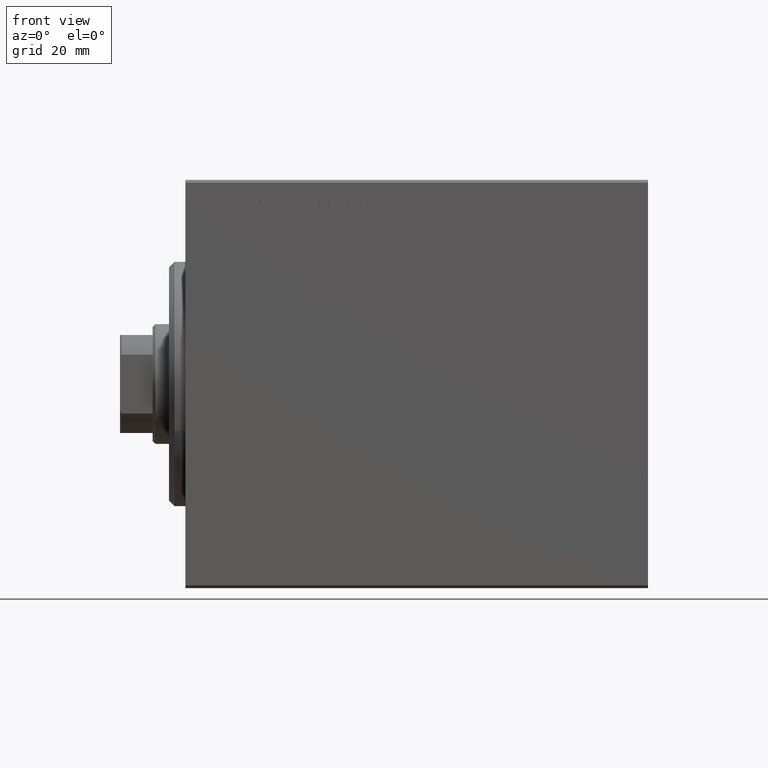
[diagram: clean part render]
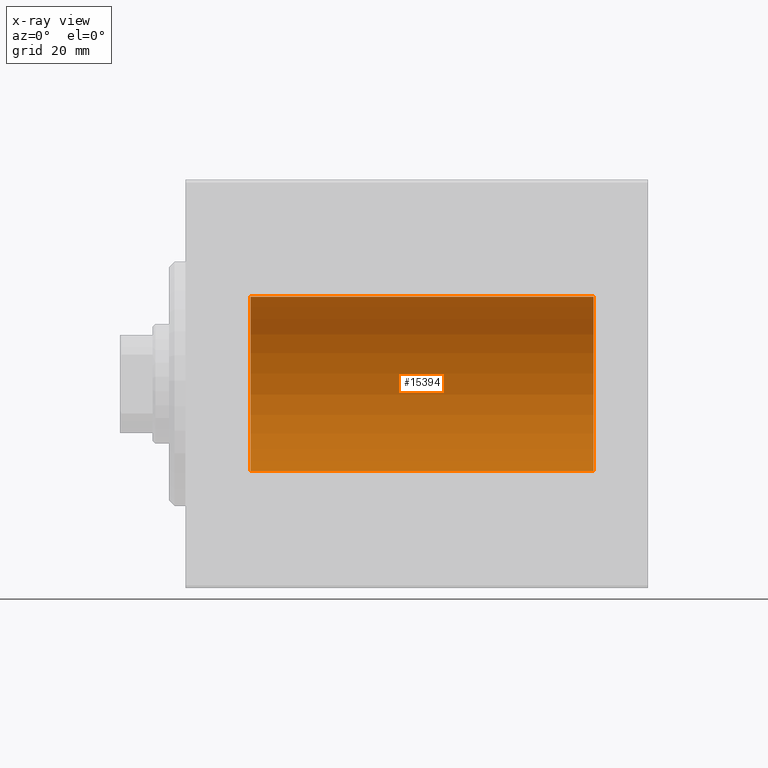
[diagram: x-ray — body ghosted, one internal face saturated and labeled with its STEP entity id]
A machine part, front view, then the same camera in x-ray: the body is ghosted and one INTERNAL B-rep face — a face not visible from any outside direction — is saturated and labeled: STEP entity #15394.
In plain terms, the highlighted cylindrical surface (partial cylindrical patch) has radius 16 mm, axis along (-1, -0, -0).
Its self-contained STEP definition (entity closure, byte-faithful):
#251 = VECTOR ( 'NONE', #12620, 1000.000000000000000 ) ;
#1175 = CARTESIAN_POINT ( 'NONE',  ( 75.00000000000000000, 0.000000000000000000, 0.000000000000000000 ) ) ;
#1858 = CARTESIAN_POINT ( 'NONE',  ( 75.00000000000000000, 1.959434878635765131E-15, -16.00000000000000000 ) ) ;
#2858 = VERTEX_POINT ( 'NONE', #30534 ) ;
#3878 = VERTEX_POINT ( 'NONE', #28300 ) ;
#4497 = FACE_OUTER_BOUND ( 'NONE', #8228, .T. ) ;
#7757 = VECTOR ( 'NONE', #10652, 1000.000000000000000 ) ;
#7779 = CARTESIAN_POINT ( 'NONE',  ( 11.99999999999999645, 0.000000000000000000, 0.000000000000000000 ) ) ;
#8182 = CIRCLE ( 'NONE', #13779, 16.00000000000000000 ) ;
#8228 = EDGE_LOOP ( 'NONE', ( #33963, #39919, #8335, #10819 ) ) ;
#8335 = ORIENTED_EDGE ( 'NONE', *, *, #22455, .T. ) ;
#10596 = VERTEX_POINT ( 'NONE', #40124 ) ;
#10652 = DIRECTION ( 'NONE',  ( -1.000000000000000000, -0.000000000000000000, -0.000000000000000000 ) ) ;
#10819 = ORIENTED_EDGE ( 'NONE', *, *, #28501, .T. ) ;
#11788 = VERTEX_POINT ( 'NONE', #19115 ) ;
#12620 = DIRECTION ( 'NONE',  ( -1.000000000000000000, -0.000000000000000000, -0.000000000000000000 ) ) ;
#12667 = CIRCLE ( 'NONE', #24631, 16.00000000000000000 ) ;
#13779 = AXIS2_PLACEMENT_3D ( 'NONE', #43525, #39999, #26765 ) ;
#14214 = EDGE_CURVE ( 'NONE', #3878, #2858, #8182, .T. ) ;
#14606 = DIRECTION ( 'NONE',  ( -1.000000000000000000, -0.000000000000000000, -0.000000000000000000 ) ) ;
#15394 = ADVANCED_FACE ( 'NONE', ( #4497 ), #31354, .F. ) ;
#19115 = CARTESIAN_POINT ( 'NONE',  ( 11.99999999999999645, 1.959434878635765131E-15, -16.00000000000000000 ) ) ;
#21202 = DIRECTION ( 'NONE',  ( -1.000000000000000000, 0.000000000000000000, 0.000000000000000000 ) ) ;
#22455 = EDGE_CURVE ( 'NONE', #3878, #10596, #26728, .T. ) ;
#24631 = AXIS2_PLACEMENT_3D ( 'NONE', #7779, #21202, #35519 ) ;
#26728 = LINE ( 'NONE', #36660, #7757 ) ;
#26765 = DIRECTION ( 'NONE',  ( 0.000000000000000000, 0.000000000000000000, 1.000000000000000000 ) ) ;
#28053 = DIRECTION ( 'NONE',  ( 0.000000000000000000, 0.000000000000000000, 1.000000000000000000 ) ) ;
#28300 = CARTESIAN_POINT ( 'NONE',  ( 75.00000000000000000, 0.000000000000000000, 16.00000000000000000 ) ) ;
#28501 = EDGE_CURVE ( 'NONE', #10596, #11788, #12667, .T. ) ;
#29370 = LINE ( 'NONE', #1858, #251 ) ;
#30534 = CARTESIAN_POINT ( 'NONE',  ( 75.00000000000000000, 1.959434878635765131E-15, -16.00000000000000000 ) ) ;
#31354 = CYLINDRICAL_SURFACE ( 'NONE', #37545, 16.00000000000000000 ) ;
#33963 = ORIENTED_EDGE ( 'NONE', *, *, #37893, .F. ) ;
#35519 = DIRECTION ( 'NONE',  ( 0.000000000000000000, 0.000000000000000000, 1.000000000000000000 ) ) ;
#36660 = CARTESIAN_POINT ( 'NONE',  ( 75.00000000000000000, 0.000000000000000000, 16.00000000000000000 ) ) ;
#37545 = AXIS2_PLACEMENT_3D ( 'NONE', #1175, #14606, #28053 ) ;
#37893 = EDGE_CURVE ( 'NONE', #2858, #11788, #29370, .T. ) ;
#39919 = ORIENTED_EDGE ( 'NONE', *, *, #14214, .F. ) ;
#39999 = DIRECTION ( 'NONE',  ( -1.000000000000000000, 0.000000000000000000, 0.000000000000000000 ) ) ;
#40124 = CARTESIAN_POINT ( 'NONE',  ( 11.99999999999999645, 0.000000000000000000, 16.00000000000000000 ) ) ;
#43525 = CARTESIAN_POINT ( 'NONE',  ( 75.00000000000000000, 0.000000000000000000, 0.000000000000000000 ) ) ;